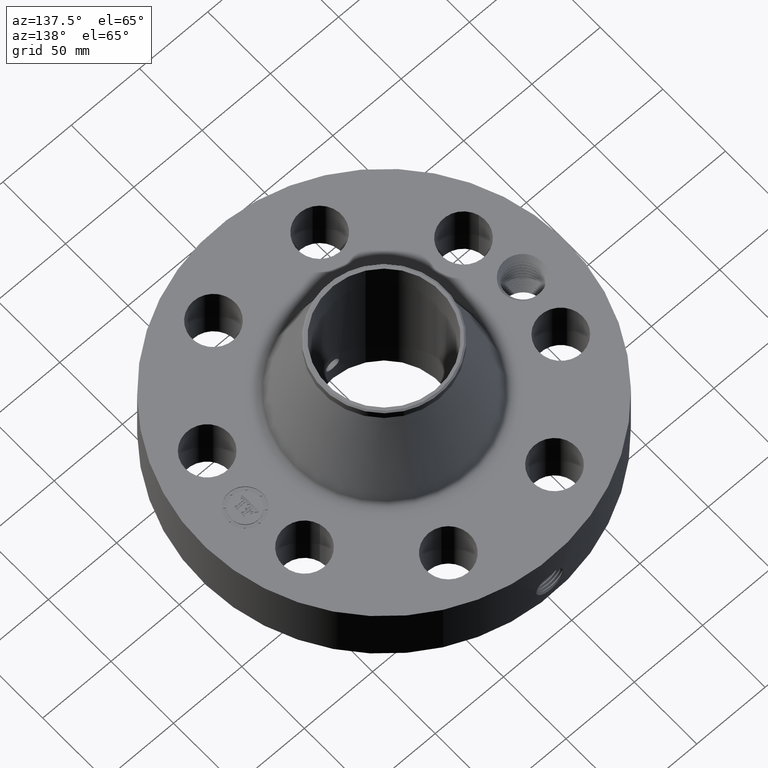
[diagram: clean part render]
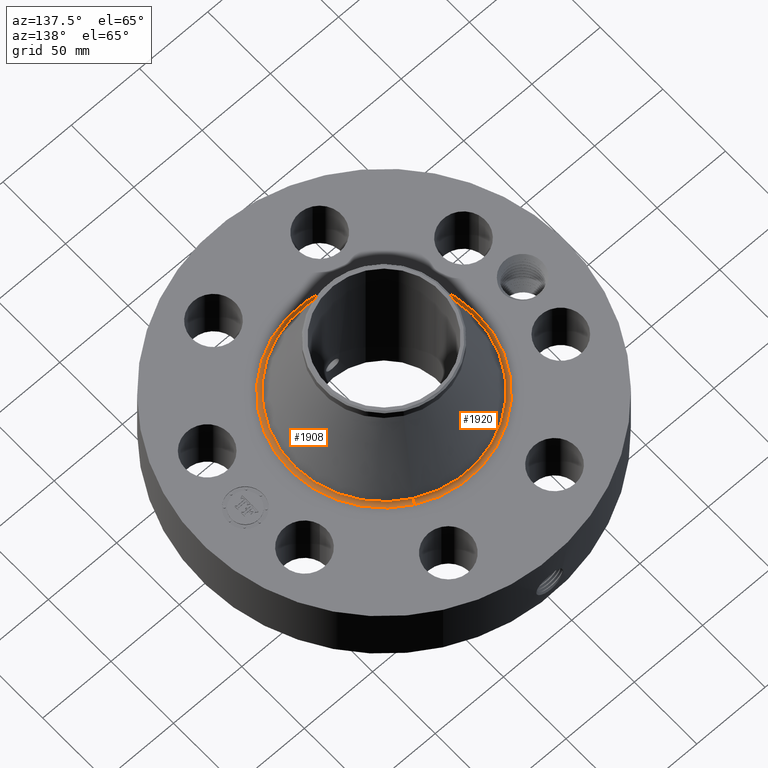
[diagram: same view with one multi-face feature highlighted, each face labeled with its STEP entity id]
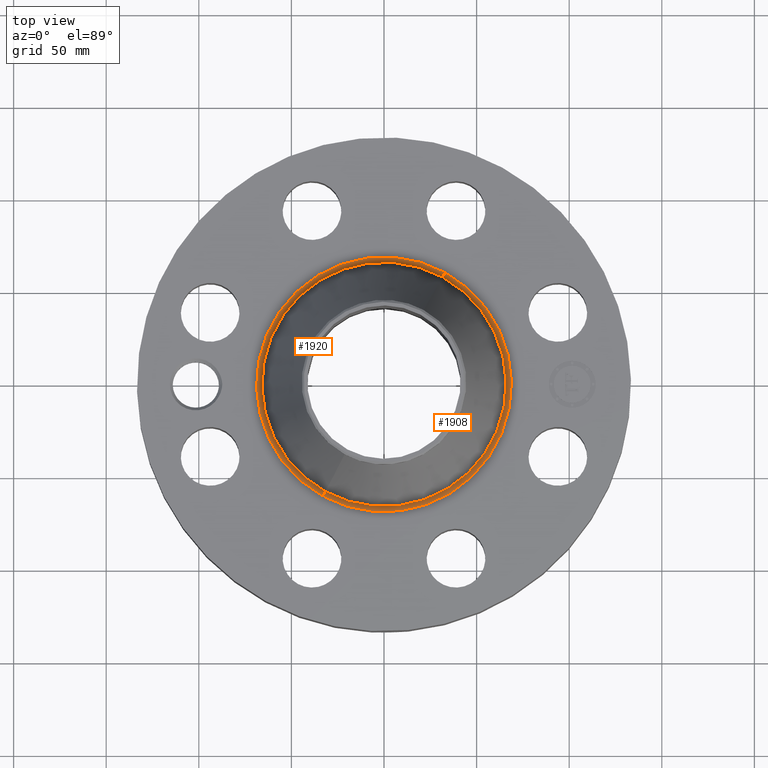
[diagram: same view with one multi-face feature highlighted, each face labeled with its STEP entity id]
A machine part, auxiliary view. The highlighted faces form ONE feature: a constant-radius fillet chain: 2 tangent blend faces with common blend radius 3.048 mm. The faces share edges in the B-rep.
A second angle (top view) of the same feature is appended — it is thin or edge-on in the first view.
Their STEP definitions:
[1] entity #1920 (Torus):
#573=AXIS2_PLACEMENT_3D('Circle Axis2P3D',#571,#572,$) ;
#1881=AXIS2_PLACEMENT_3D('Torus Axis2P3D',#1878,#1879,#1880) ;
#1885=AXIS2_PLACEMENT_3D('Circle Axis2P3D',#1883,#1884,$) ;
#1899=AXIS2_PLACEMENT_3D('Circle Axis2P3D',#1897,#1898,$) ;
#1911=AXIS2_PLACEMENT_3D('Circle Axis2P3D',#1909,#1910,$) ;
#571=CARTESIAN_POINT('Axis2P3D Location',(0.,0.,2.13000000001)) ;
#575=CARTESIAN_POINT('Vertex',(-1.29915754214,-2.37809192946,2.13000000001)) ;
#577=CARTESIAN_POINT('Vertex',(1.29915754214,2.37809192946,2.13000000001)) ;
#1878=CARTESIAN_POINT('Axis2P3D Location',(0.,0.,2.25000000001)) ;
#1883=CARTESIAN_POINT('Axis2P3D Location',(1.29915754214,2.37809192946,2.25000000001)) ;
#1887=CARTESIAN_POINT('Vertex',(1.24492345067,2.27881709092,2.20996039767)) ;
#1894=CARTESIAN_POINT('Vertex',(-1.24492345067,-2.27881709092,2.20996039767)) ;
#1897=CARTESIAN_POINT('Axis2P3D Location',(-1.29915754214,-2.37809192946,2.25000000001)) ;
#1909=CARTESIAN_POINT('Axis2P3D Location',(0.,0.,2.20996039767)) ;
#572=DIRECTION('Axis2P3D Direction',(0.,0.,-0.0393700787402)) ;
#1879=DIRECTION('Axis2P3D Direction',(0.,0.,-0.0393700787402)) ;
#1880=DIRECTION('Axis2P3D XDirection',(-0.0188750212049,-0.0345504945626,0.)) ;
#1884=DIRECTION('Axis2P3D Direction',(-0.0345504945626,0.0188750212049,0.)) ;
#1898=DIRECTION('Axis2P3D Direction',(0.0345504945626,-0.0188750212049,0.)) ;
#1910=DIRECTION('Axis2P3D Direction',(0.,0.,-0.0393700787402)) ;
#1915=ORIENTED_EDGE('',*,*,#579,.F.) ;
#1916=ORIENTED_EDGE('',*,*,#1901,.T.) ;
#1917=ORIENTED_EDGE('',*,*,#1913,.T.) ;
#1918=ORIENTED_EDGE('',*,*,#1889,.F.) ;
#1920=ADVANCED_FACE('PartBody',(#1919),#1882,.F.) ;
#574=CIRCLE('generated circle',#573,2.70982131224) ;
#1886=CIRCLE('generated circle',#1885,0.12) ;
#1900=CIRCLE('generated circle',#1899,0.12) ;
#1912=CIRCLE('generated circle',#1911,2.59669823658) ;
#1882=TOROIDAL_SURFACE('homeo Torus',#1881,2.70982131224,0.12) ;
#579=EDGE_CURVE('',#576,#578,#574,.T.) ;
#1889=EDGE_CURVE('',#578,#1888,#1886,.T.) ;
#1901=EDGE_CURVE('',#576,#1895,#1900,.T.) ;
#1913=EDGE_CURVE('',#1895,#1888,#1912,.T.) ;
#1914=EDGE_LOOP('',(#1915,#1916,#1917,#1918)) ;
#1919=FACE_OUTER_BOUND('',#1914,.T.) ;
#576=VERTEX_POINT('',#575) ;
#578=VERTEX_POINT('',#577) ;
#1888=VERTEX_POINT('',#1887) ;
#1895=VERTEX_POINT('',#1894) ;
[2] entity #1908 (Torus):
#582=AXIS2_PLACEMENT_3D('Circle Axis2P3D',#580,#581,$) ;
#1881=AXIS2_PLACEMENT_3D('Torus Axis2P3D',#1878,#1879,#1880) ;
#1885=AXIS2_PLACEMENT_3D('Circle Axis2P3D',#1883,#1884,$) ;
#1892=AXIS2_PLACEMENT_3D('Circle Axis2P3D',#1890,#1891,$) ;
#1899=AXIS2_PLACEMENT_3D('Circle Axis2P3D',#1897,#1898,$) ;
#575=CARTESIAN_POINT('Vertex',(-1.29915754214,-2.37809192946,2.13000000001)) ;
#577=CARTESIAN_POINT('Vertex',(1.29915754214,2.37809192946,2.13000000001)) ;
#580=CARTESIAN_POINT('Axis2P3D Location',(0.,0.,2.13000000001)) ;
#1878=CARTESIAN_POINT('Axis2P3D Location',(0.,0.,2.25000000001)) ;
#1883=CARTESIAN_POINT('Axis2P3D Location',(1.29915754214,2.37809192946,2.25000000001)) ;
#1887=CARTESIAN_POINT('Vertex',(1.24492345067,2.27881709092,2.20996039767)) ;
#1890=CARTESIAN_POINT('Axis2P3D Location',(0.,0.,2.20996039767)) ;
#1894=CARTESIAN_POINT('Vertex',(-1.24492345067,-2.27881709092,2.20996039767)) ;
#1897=CARTESIAN_POINT('Axis2P3D Location',(-1.29915754214,-2.37809192946,2.25000000001)) ;
#581=DIRECTION('Axis2P3D Direction',(0.,0.,-0.0393700787402)) ;
#1879=DIRECTION('Axis2P3D Direction',(0.,0.,-0.0393700787402)) ;
#1880=DIRECTION('Axis2P3D XDirection',(-0.0188750212049,-0.0345504945626,0.)) ;
#1884=DIRECTION('Axis2P3D Direction',(-0.0345504945626,0.0188750212049,0.)) ;
#1891=DIRECTION('Axis2P3D Direction',(0.,0.,-0.0393700787402)) ;
#1898=DIRECTION('Axis2P3D Direction',(0.0345504945626,-0.0188750212049,0.)) ;
#1903=ORIENTED_EDGE('',*,*,#584,.F.) ;
#1904=ORIENTED_EDGE('',*,*,#1889,.T.) ;
#1905=ORIENTED_EDGE('',*,*,#1896,.T.) ;
#1906=ORIENTED_EDGE('',*,*,#1901,.F.) ;
#1908=ADVANCED_FACE('PartBody',(#1907),#1882,.F.) ;
#583=CIRCLE('generated circle',#582,2.70982131224) ;
#1886=CIRCLE('generated circle',#1885,0.12) ;
#1893=CIRCLE('generated circle',#1892,2.59669823658) ;
#1900=CIRCLE('generated circle',#1899,0.12) ;
#1882=TOROIDAL_SURFACE('homeo Torus',#1881,2.70982131224,0.12) ;
#584=EDGE_CURVE('',#578,#576,#583,.T.) ;
#1889=EDGE_CURVE('',#578,#1888,#1886,.T.) ;
#1896=EDGE_CURVE('',#1888,#1895,#1893,.T.) ;
#1901=EDGE_CURVE('',#576,#1895,#1900,.T.) ;
#1902=EDGE_LOOP('',(#1903,#1904,#1905,#1906)) ;
#1907=FACE_OUTER_BOUND('',#1902,.T.) ;
#576=VERTEX_POINT('',#575) ;
#578=VERTEX_POINT('',#577) ;
#1888=VERTEX_POINT('',#1887) ;
#1895=VERTEX_POINT('',#1894) ;